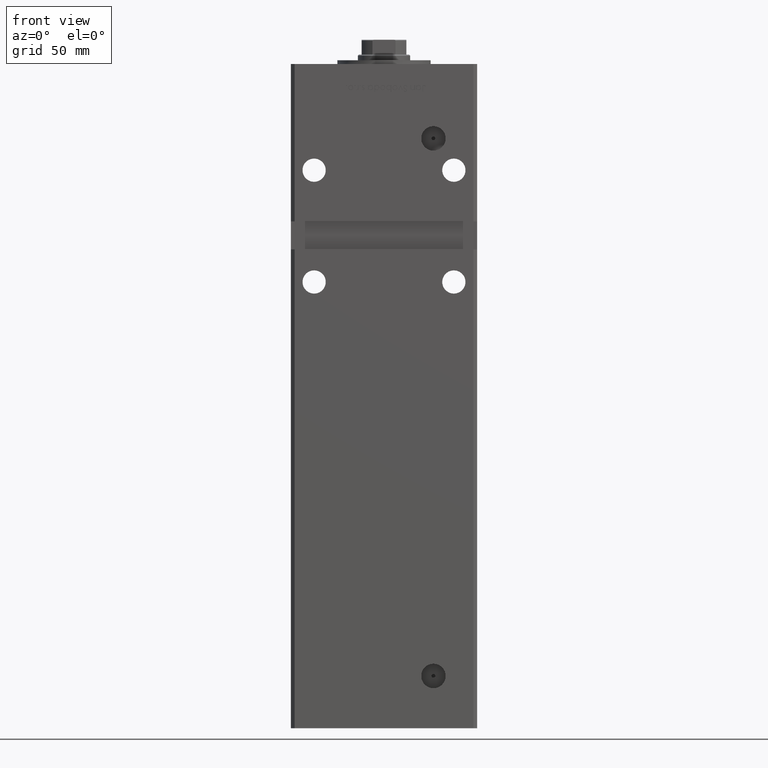
[diagram: clean part render]
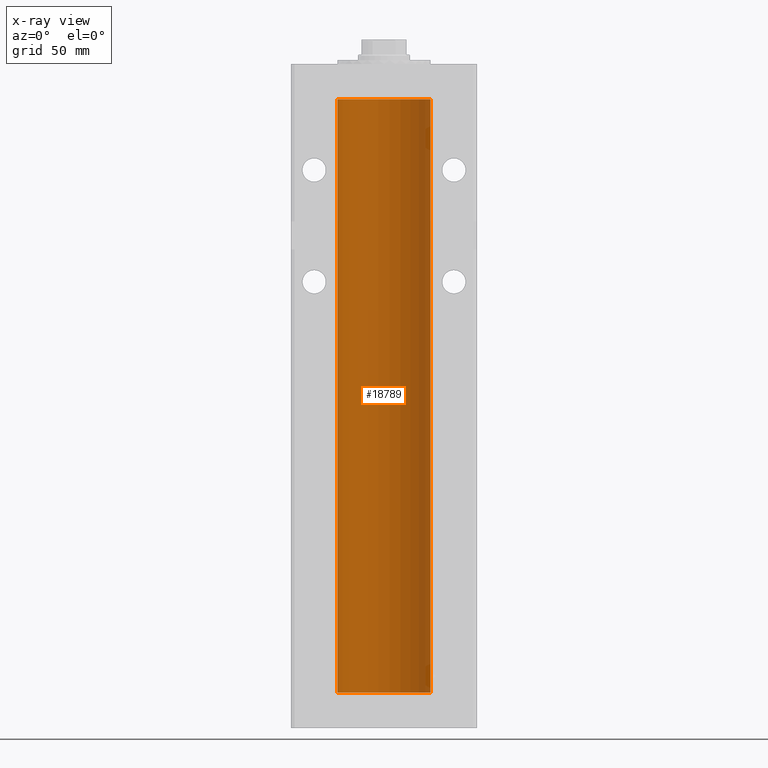
[diagram: x-ray — body ghosted, one internal face saturated and labeled with its STEP entity id]
A machine part, front view, then the same camera in x-ray: the body is ghosted and one INTERNAL B-rep face — a face not visible from any outside direction — is saturated and labeled: STEP entity #18789.
In plain terms, the highlighted cylindrical surface (partial cylindrical patch) has radius 25 mm, axis along (-0, -0, -1).
Its self-contained STEP definition (entity closure, byte-faithful):
#2103 = DIRECTION ( 'NONE',  ( -0.000000000000000000, -0.000000000000000000, -1.000000000000000000 ) ) ;
#4171 = AXIS2_PLACEMENT_3D ( 'NONE', #52672, #52928, #48129 ) ;
#4341 = CARTESIAN_POINT ( 'NONE',  ( 25.00000000000000000, 3.061616997868383043E-15, 318.5000000000000000 ) ) ;
#5735 = CARTESIAN_POINT ( 'NONE',  ( -25.00000000000000000, 0.000000000000000000, 0.000000000000000000 ) ) ;
#8851 = EDGE_CURVE ( 'NONE', #46988, #42436, #16985, .T. ) ;
#9965 = AXIS2_PLACEMENT_3D ( 'NONE', #34742, #51131, #51403 ) ;
#11803 = EDGE_CURVE ( 'NONE', #36706, #15198, #12404, .T. ) ;
#12404 = LINE ( 'NONE', #4341, #52784 ) ;
#15198 = VERTEX_POINT ( 'NONE', #26656 ) ;
#15868 = EDGE_CURVE ( 'NONE', #36706, #46988, #40854, .T. ) ;
#16985 = LINE ( 'NONE', #17247, #22563 ) ;
#17247 = CARTESIAN_POINT ( 'NONE',  ( -25.00000000000000000, 0.000000000000000000, 318.5000000000000000 ) ) ;
#18653 = ORIENTED_EDGE ( 'NONE', *, *, #8851, .T. ) ;
#18789 = ADVANCED_FACE ( 'NONE', ( #21961 ), #22771, .F. ) ;
#20764 = ORIENTED_EDGE ( 'NONE', *, *, #11803, .F. ) ;
#21961 = FACE_OUTER_BOUND ( 'NONE', #37969, .T. ) ;
#22563 = VECTOR ( 'NONE', #33662, 1000.000000000000000 ) ;
#22771 = CYLINDRICAL_SURFACE ( 'NONE', #51262, 25.00000000000000000 ) ;
#26396 = CARTESIAN_POINT ( 'NONE',  ( -25.00000000000000000, 0.000000000000000000, 318.5000000000000000 ) ) ;
#26656 = CARTESIAN_POINT ( 'NONE',  ( 25.00000000000000000, 3.061616997868383043E-15, 0.000000000000000000 ) ) ;
#26814 = CARTESIAN_POINT ( 'NONE',  ( 0.000000000000000000, 0.000000000000000000, 318.5000000000000000 ) ) ;
#29599 = CARTESIAN_POINT ( 'NONE',  ( 25.00000000000000000, 3.061616997868383043E-15, 318.5000000000000000 ) ) ;
#33662 = DIRECTION ( 'NONE',  ( -0.000000000000000000, -0.000000000000000000, -1.000000000000000000 ) ) ;
#33909 = DIRECTION ( 'NONE',  ( -0.000000000000000000, -0.000000000000000000, -1.000000000000000000 ) ) ;
#34742 = CARTESIAN_POINT ( 'NONE',  ( 0.000000000000000000, 0.000000000000000000, 318.5000000000000000 ) ) ;
#35162 = DIRECTION ( 'NONE',  ( -1.000000000000000000, 0.000000000000000000, 0.000000000000000000 ) ) ;
#36706 = VERTEX_POINT ( 'NONE', #29599 ) ;
#37969 = EDGE_LOOP ( 'NONE', ( #20764, #46372, #18653, #45038 ) ) ;
#40163 = EDGE_CURVE ( 'NONE', #15198, #42436, #41089, .T. ) ;
#40854 = CIRCLE ( 'NONE', #9965, 25.00000000000000000 ) ;
#41089 = CIRCLE ( 'NONE', #4171, 25.00000000000000000 ) ;
#42436 = VERTEX_POINT ( 'NONE', #5735 ) ;
#45038 = ORIENTED_EDGE ( 'NONE', *, *, #40163, .F. ) ;
#46372 = ORIENTED_EDGE ( 'NONE', *, *, #15868, .T. ) ;
#46988 = VERTEX_POINT ( 'NONE', #26396 ) ;
#48129 = DIRECTION ( 'NONE',  ( 1.000000000000000000, 0.000000000000000000, 0.000000000000000000 ) ) ;
#51131 = DIRECTION ( 'NONE',  ( -0.000000000000000000, 0.000000000000000000, 1.000000000000000000 ) ) ;
#51262 = AXIS2_PLACEMENT_3D ( 'NONE', #26814, #2103, #35162 ) ;
#51403 = DIRECTION ( 'NONE',  ( 1.000000000000000000, 0.000000000000000000, 0.000000000000000000 ) ) ;
#52672 = CARTESIAN_POINT ( 'NONE',  ( 0.000000000000000000, 0.000000000000000000, 0.000000000000000000 ) ) ;
#52784 = VECTOR ( 'NONE', #33909, 1000.000000000000000 ) ;
#52928 = DIRECTION ( 'NONE',  ( -0.000000000000000000, 0.000000000000000000, 1.000000000000000000 ) ) ;